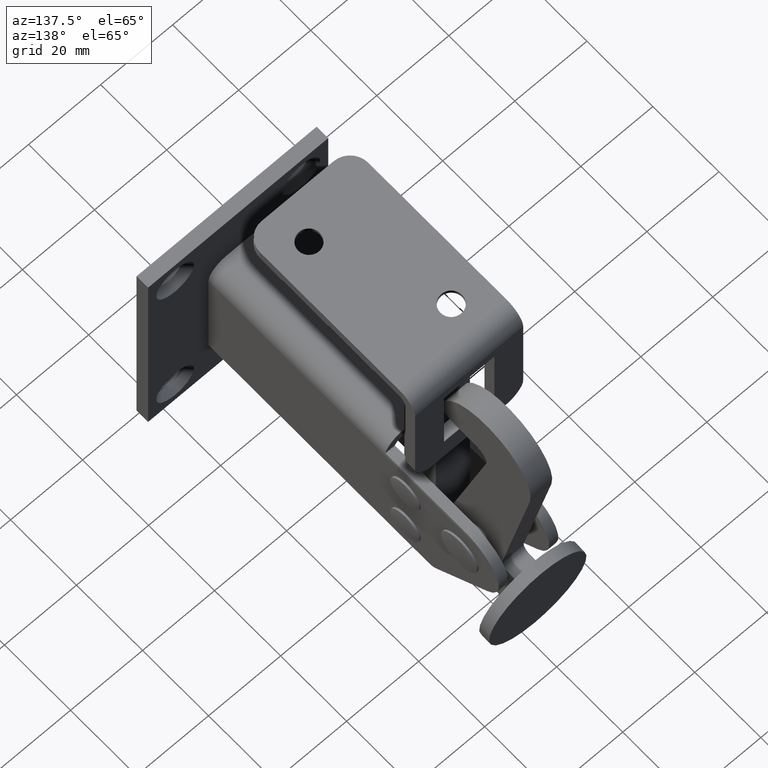
[diagram: clean part render]
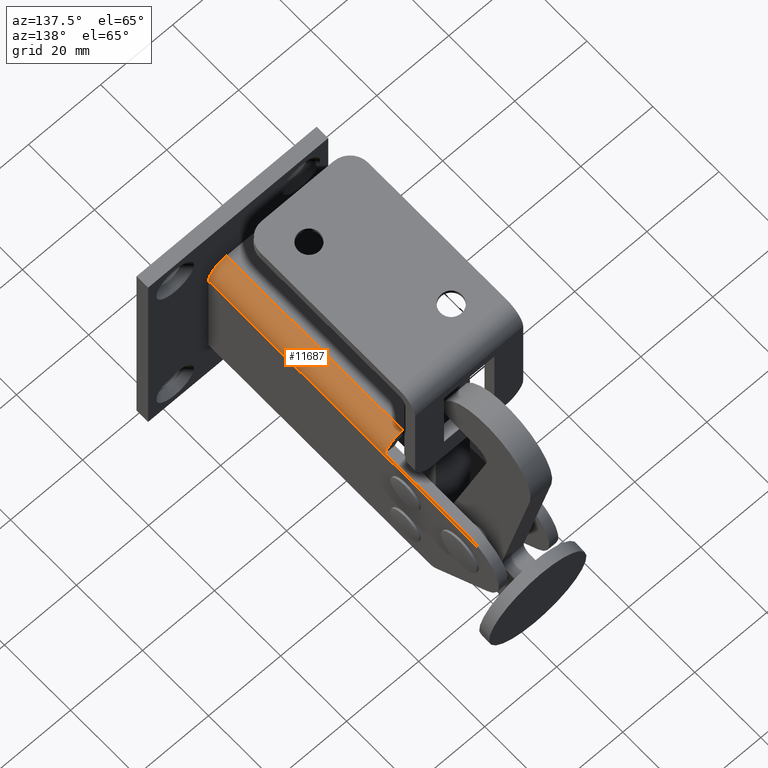
[diagram: same view with one face highlighted and labeled with its STEP entity id]
A machine part, auxiliary view. The second image highlights one B-rep face of the part: STEP entity #11687.
In plain terms, the highlighted cylindrical surface (edge-blend (fillet) strip) has radius 5 mm, axis along (-0, -1, -0).
Its self-contained STEP definition (entity closure, byte-faithful):
#25 = CARTESIAN_POINT ( 'NONE',  ( 3.249999999999998700, 93.50000000000000000, 11.49999999999999300 ) ) ;
#161 = DIRECTION ( 'NONE',  ( 0.0000000000000000000, 0.0000000000000000000, -1.000000000000000000 ) ) ;
#334 = EDGE_CURVE ( 'NONE', #10664, #2857, #10024, .T. ) ;
#466 = DIRECTION ( 'NONE',  ( 0.0000000000000000000, -1.387778780781444900E-015, -1.000000000000000000 ) ) ;
#577 = CARTESIAN_POINT ( 'NONE',  ( 3.250000000000000400, 93.50000000000000000, 16.49999999999999300 ) ) ;
#777 = CARTESIAN_POINT ( 'NONE',  ( 3.249999999999998700, 3.500000000000000000, 11.49999999999999300 ) ) ;
#795 = EDGE_LOOP ( 'NONE', ( #8617, #3666, #3818, #7964, #2502, #2775 ) ) ;
#828 = DIRECTION ( 'NONE',  ( 0.0000000000000000000, 0.0000000000000000000, 1.000000000000000000 ) ) ;
#1239 = EDGE_CURVE ( 'NONE', #6426, #6150, #6202, .T. ) ;
#1261 = CARTESIAN_POINT ( 'NONE',  ( 8.148979485566348700, 81.49999999999998600, 12.50000000000000400 ) ) ;
#1454 = VERTEX_POINT ( 'NONE', #11838 ) ;
#1767 = DIRECTION ( 'NONE',  ( 0.0000000000000000000, 1.000000000000000000, 0.0000000000000000000 ) ) ;
#1846 = EDGE_CURVE ( 'NONE', #9091, #10664, #6248, .T. ) ;
#2502 = ORIENTED_EDGE ( 'NONE', *, *, #5452, .F. ) ;
#2669 = VECTOR ( 'NONE', #4596, 1000.000000000000000 ) ;
#2696 = AXIS2_PLACEMENT_3D ( 'NONE', #777, #1767, #828 ) ;
#2775 = ORIENTED_EDGE ( 'NONE', *, *, #1239, .T. ) ;
#2857 = VERTEX_POINT ( 'NONE', #12532 ) ;
#3263 = CYLINDRICAL_SURFACE ( 'NONE', #7385, 5.000000000000002700 ) ;
#3666 = ORIENTED_EDGE ( 'NONE', *, *, #12469, .T. ) ;
#3716 = CIRCLE ( 'NONE', #10222, 5.000000000000002700 ) ;
#3818 = ORIENTED_EDGE ( 'NONE', *, *, #1846, .T. ) ;
#4263 = CARTESIAN_POINT ( 'NONE',  ( 8.168880642885229200, 83.01444086165066900, 12.41289701689586000 ) ) ;
#4290 = VECTOR ( 'NONE', #4298, 1000.000000000000000 ) ;
#4298 = DIRECTION ( 'NONE',  ( -0.0000000000000000000, -1.000000000000000000, -0.0000000000000000000 ) ) ;
#4596 = DIRECTION ( 'NONE',  ( -0.0000000000000000000, -1.000000000000000000, -0.0000000000000000000 ) ) ;
#4602 = LINE ( 'NONE', #9464, #2669 ) ;
#4639 = DIRECTION ( 'NONE',  ( 0.0000000000000000000, -1.000000000000000000, 1.734723475976807300E-015 ) ) ;
#4837 = FACE_OUTER_BOUND ( 'NONE', #795, .T. ) ;
#5452 = EDGE_CURVE ( 'NONE', #6426, #2857, #7098, .T. ) ;
#5550 = EDGE_CURVE ( 'NONE', #6150, #1454, #4602, .T. ) ;
#6150 = VERTEX_POINT ( 'NONE', #13084 ) ;
#6202 = B_SPLINE_CURVE_WITH_KNOTS ( 'NONE', 3,
 ( #12438, #9391, #9478, #4263, #7345, #1261 ),
 .UNSPECIFIED., .F., .F.,
 ( 4, 2, 4 ),
 ( 0.0000000000000000000, 0.002240565048607416600, 0.004481130097214833200 ),
 .UNSPECIFIED. ) ;
#6212 = CARTESIAN_POINT ( 'NONE',  ( 3.249999999999992500, 57.00000000000000700, 16.49999999999999300 ) ) ;
#6248 = LINE ( 'NONE', #577, #10407 ) ;
#6426 = VERTEX_POINT ( 'NONE', #13073 ) ;
#7098 = LINE ( 'NONE', #12381, #4290 ) ;
#7345 = CARTESIAN_POINT ( 'NONE',  ( 8.148979485566355800, 82.25738378568803500, 12.50000000000000400 ) ) ;
#7385 = AXIS2_PLACEMENT_3D ( 'NONE', #25, #11123, #161 ) ;
#7591 = CARTESIAN_POINT ( 'NONE',  ( 3.249999999999998700, 57.00000000000000700, 11.49999999999999300 ) ) ;
#7964 = ORIENTED_EDGE ( 'NONE', *, *, #334, .T. ) ;
#8617 = ORIENTED_EDGE ( 'NONE', *, *, #5550, .T. ) ;
#8819 = DIRECTION ( 'NONE',  ( -0.0000000000000000000, -1.000000000000000000, -0.0000000000000000000 ) ) ;
#9091 = VERTEX_POINT ( 'NONE', #6212 ) ;
#9391 = CARTESIAN_POINT ( 'NONE',  ( 8.250000000000000000, 85.17702445073108200, 11.83024688959279700 ) ) ;
#9464 = CARTESIAN_POINT ( 'NONE',  ( 8.148979485566359300, 93.50000000000000000, 12.49999999999999100 ) ) ;
#9478 = CARTESIAN_POINT ( 'NONE',  ( 8.219436850140008100, 84.47173922661866600, 12.07746440139538200 ) ) ;
#10024 = CIRCLE ( 'NONE', #2696, 5.000000000000000900 ) ;
#10222 = AXIS2_PLACEMENT_3D ( 'NONE', #7591, #4639, #466 ) ;
#10407 = VECTOR ( 'NONE', #8819, 1000.000000000000000 ) ;
#10664 = VERTEX_POINT ( 'NONE', #12550 ) ;
#11123 = DIRECTION ( 'NONE',  ( -0.0000000000000000000, -1.000000000000000000, -0.0000000000000000000 ) ) ;
#11687 = ADVANCED_FACE ( 'NONE', ( #4837 ), #3263, .T. ) ;
#11838 = CARTESIAN_POINT ( 'NONE',  ( 8.148979485566348700, 57.00000000000000000, 12.49999999999999300 ) ) ;
#12381 = CARTESIAN_POINT ( 'NONE',  ( 8.250000000000001800, 93.50000000000000000, 11.49999999999999100 ) ) ;
#12438 = CARTESIAN_POINT ( 'NONE',  ( 8.249999999999998200, 85.85889894354069400, 11.49999999999998800 ) ) ;
#12469 = EDGE_CURVE ( 'NONE', #1454, #9091, #3716, .T. ) ;
#12532 = CARTESIAN_POINT ( 'NONE',  ( 8.250000000000001800, 3.500000000000000000, 11.49999999999999100 ) ) ;
#12550 = CARTESIAN_POINT ( 'NONE',  ( 3.250000000000000400, 3.500000000000000000, 16.49999999999999300 ) ) ;
#13073 = CARTESIAN_POINT ( 'NONE',  ( 8.249999999999998200, 85.85889894354069400, 11.49999999999998800 ) ) ;
#13084 = CARTESIAN_POINT ( 'NONE',  ( 8.148979485566348700, 81.49999999999998600, 12.50000000000000400 ) ) ;